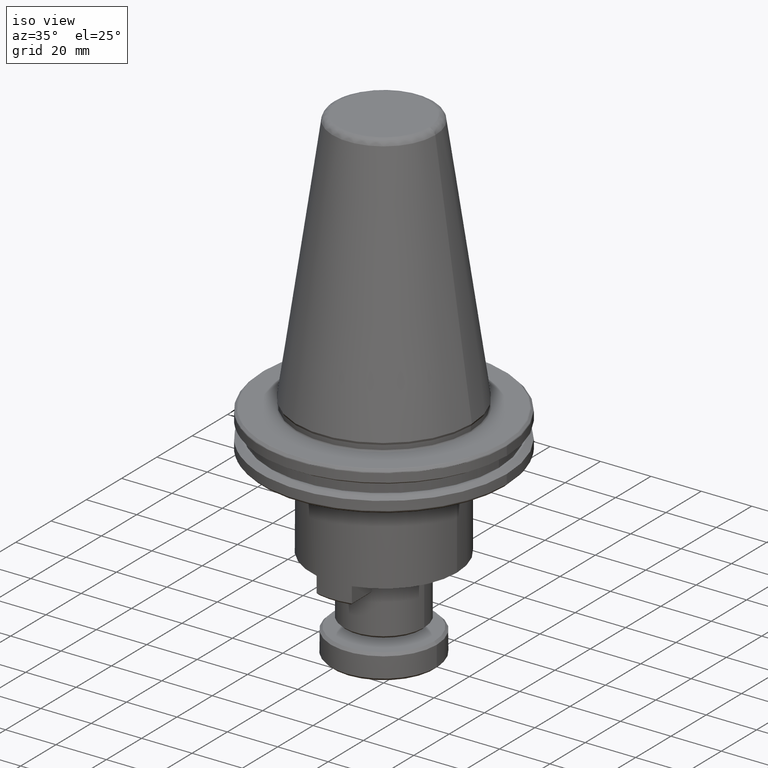
[diagram: clean part render]
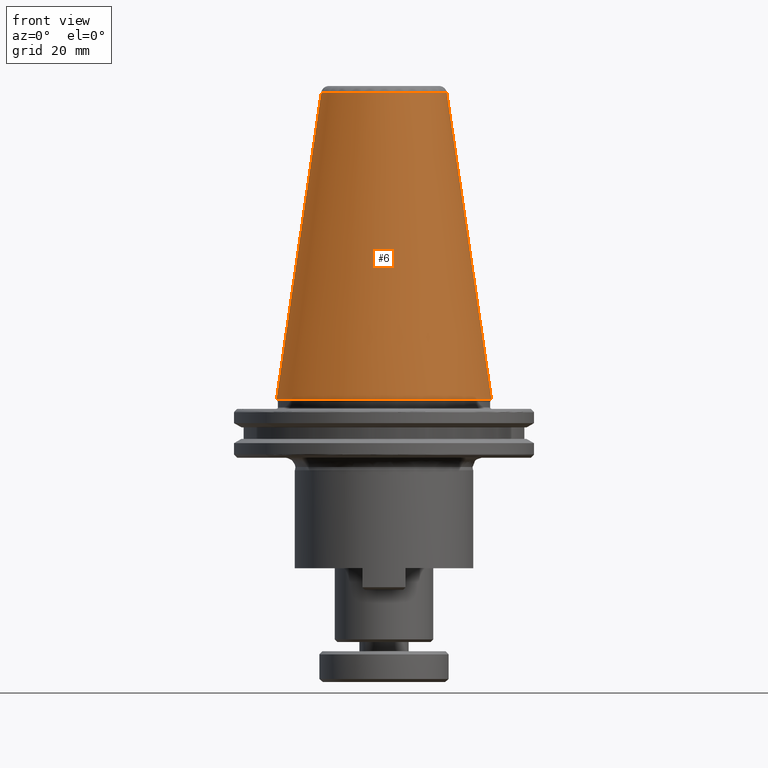
[diagram: tour spotlight — one face highlighted and labeled with its STEP entity id]
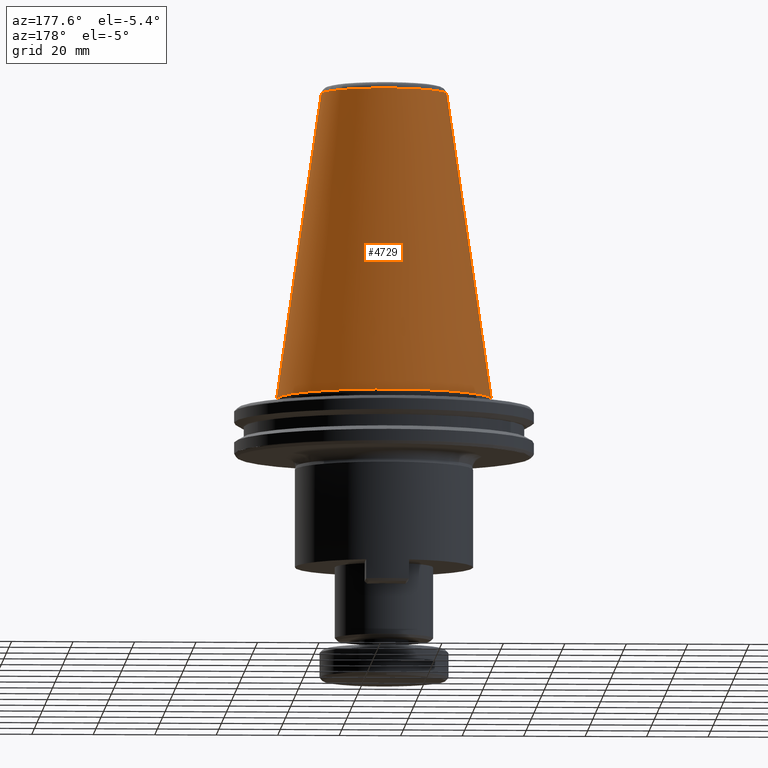
[diagram: tour spotlight — one face highlighted and labeled with its STEP entity id]
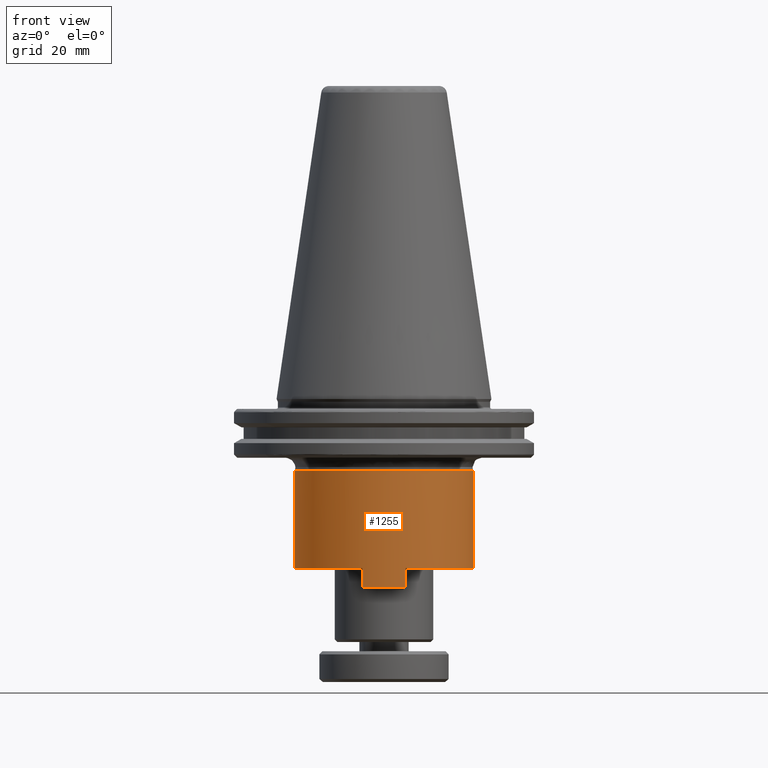
[diagram: tour spotlight — one face highlighted and labeled with its STEP entity id]
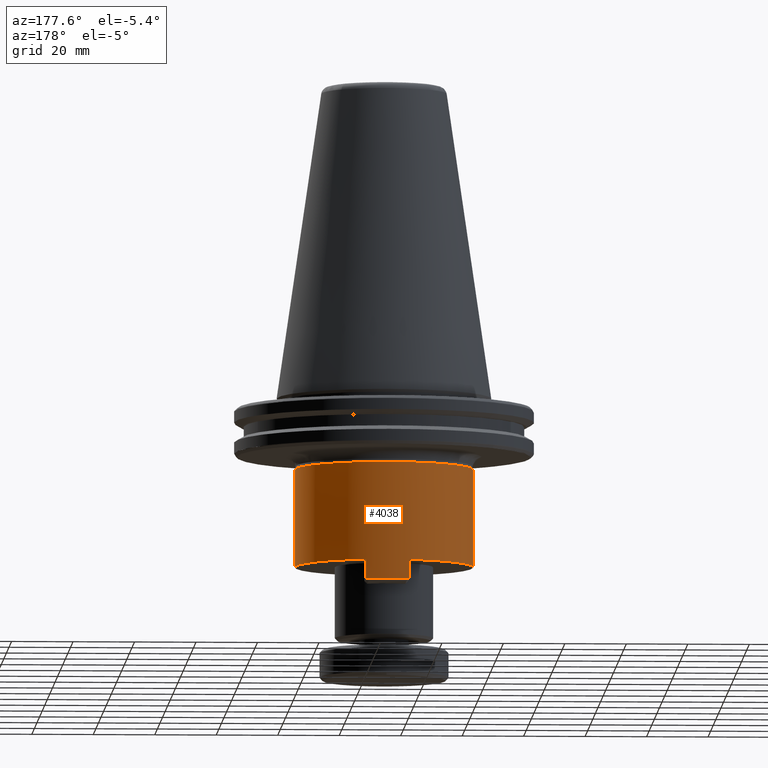
[diagram: tour spotlight — one face highlighted and labeled with its STEP entity id]
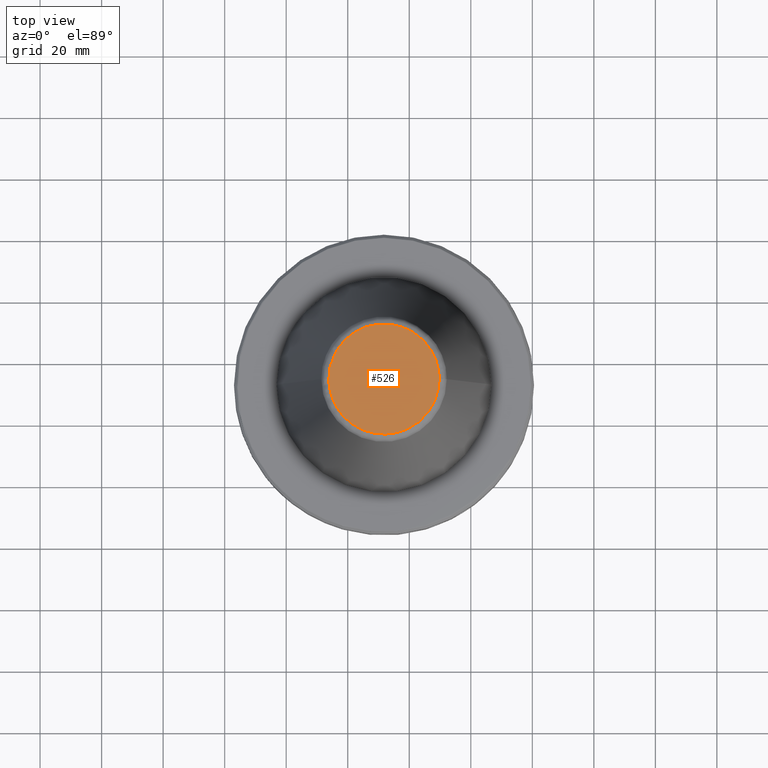
[diagram: tour spotlight — one face highlighted and labeled with its STEP entity id]
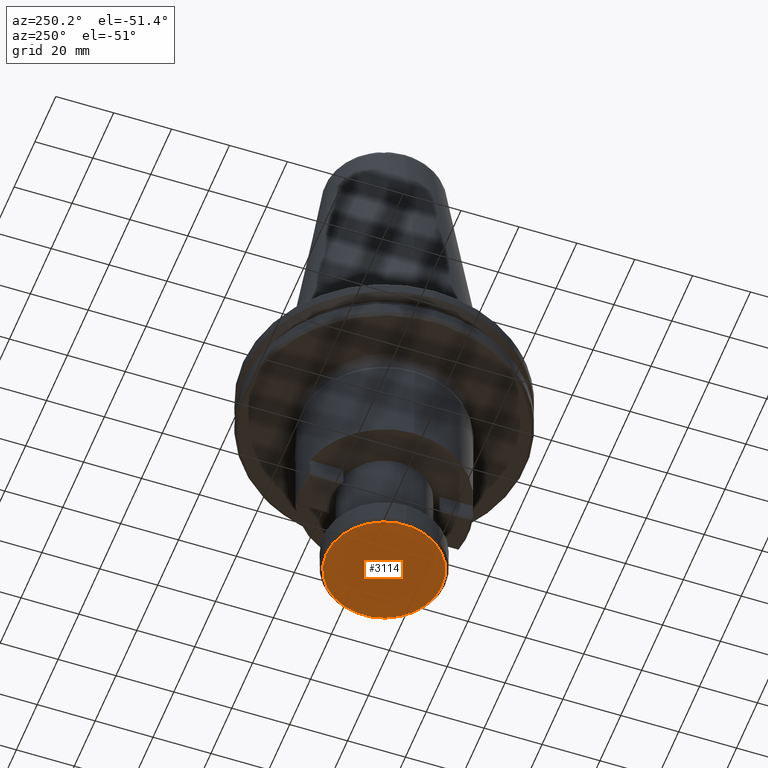
[diagram: tour spotlight — one face highlighted and labeled with its STEP entity id]
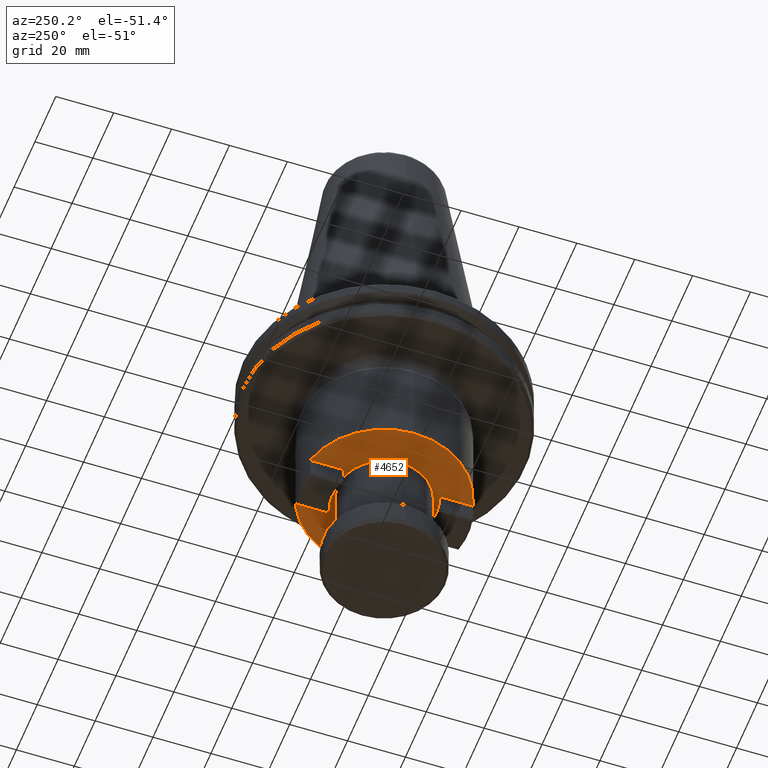
[diagram: tour spotlight — one face highlighted and labeled with its STEP entity id]
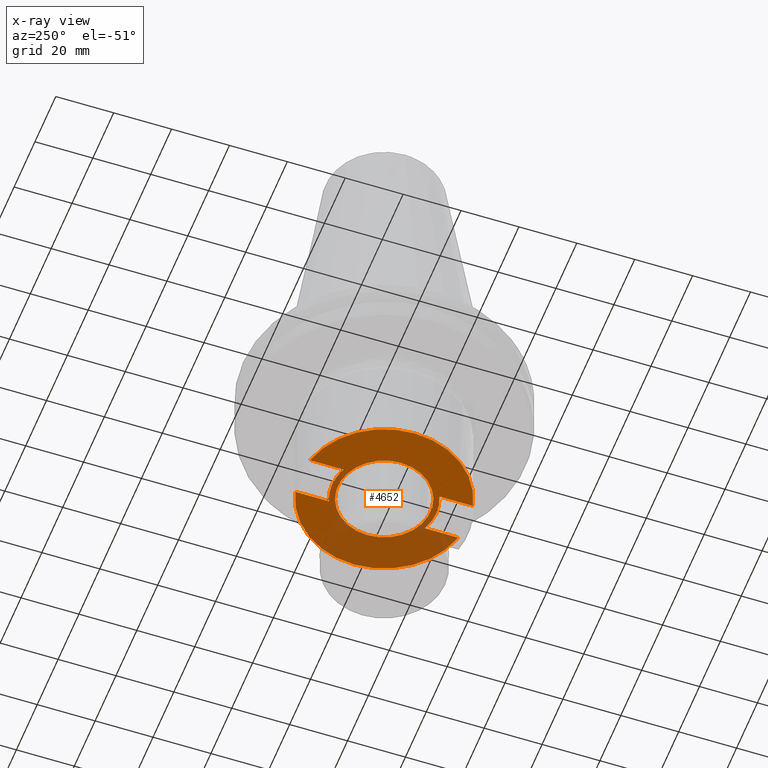
[diagram: x-ray of the same camera — body ghosted, this tour face saturated]
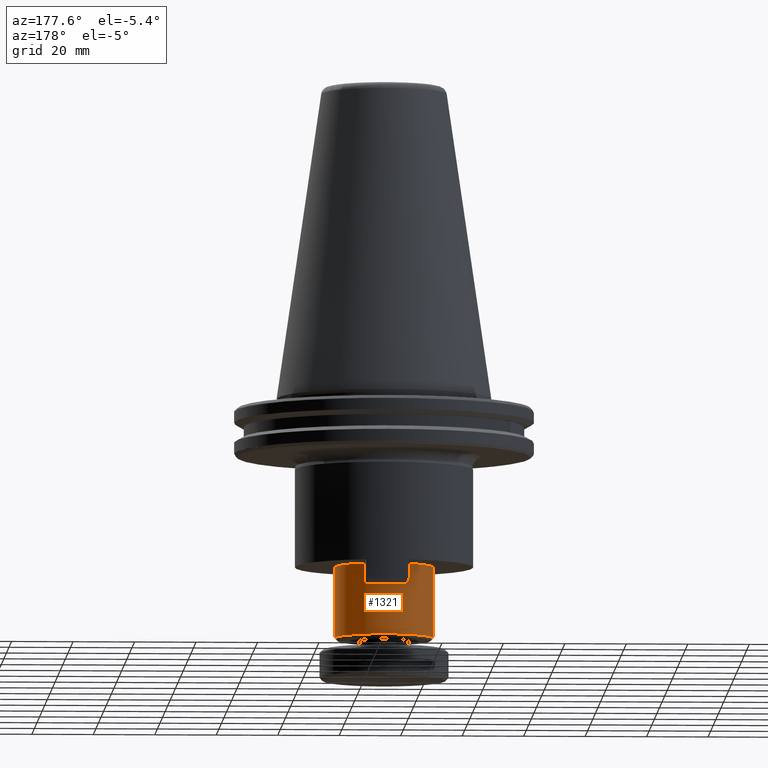
[diagram: tour spotlight — one face highlighted and labeled with its STEP entity id]
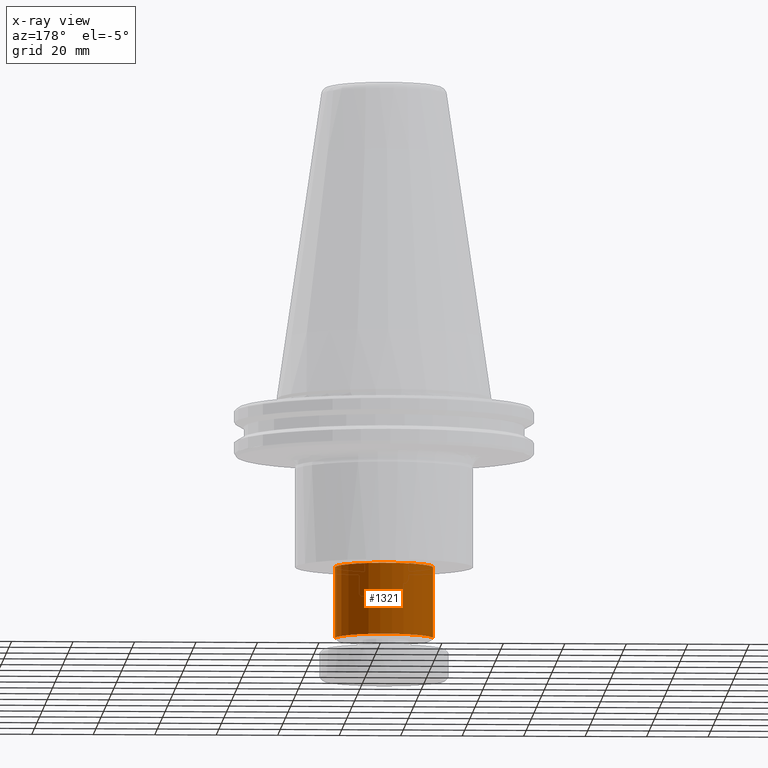
[diagram: x-ray of the same camera — body ghosted, this tour face saturated]
A machine part: a face-by-face anatomy tour. The part has 121 B-rep faces; the first image is the clean iso view, then the 8 largest visible faces are spotlighted one at a time (largest first), each with its STEP entity span.

Face 1 — front view, entity #6. In plain terms, the highlighted conical surface has half-angle 8.297 deg.
Definition (entity closure, byte-faithful):
#6 = ADVANCED_FACE ( 'NONE', ( #4749 ), #3324, .T. ) ;
#170 = ORIENTED_EDGE ( 'NONE', *, *, #2743, .T. ) ;
#605 = CARTESIAN_POINT ( 'NONE',  ( 91.78900745422478700, 111.8872747687010000, 197.6102733462804200 ) ) ;
#653 = EDGE_CURVE ( 'NONE', #3438, #5009, #2154, .T. ) ;
#756 = ORIENTED_EDGE ( 'NONE', *, *, #653, .F. ) ;
#881 = CARTESIAN_POINT ( 'NONE',  ( 56.86400745422476900, 111.8872747687010000, 97.99950277828043000 ) ) ;
#1009 = DIRECTION ( 'NONE',  ( -1.000000000000000000, 0.0000000000000000000, 1.360681347180457300E-015 ) ) ;
#1331 = DIRECTION ( 'NONE',  ( -0.0000000000000000000, -0.0000000000000000000, 1.000000000000000000 ) ) ;
#1469 = DIRECTION ( 'NONE',  ( -1.000000000000000000, 0.0000000000000000000, 0.0000000000000000000 ) ) ;
#1506 = VERTEX_POINT ( 'NONE', #2217 ) ;
#1760 = AXIS2_PLACEMENT_3D ( 'NONE', #3656, #1331, #4036 ) ;
#2085 = VECTOR ( 'NONE', #2488, 1000.000000000000000 ) ;
#2154 = LINE ( 'NONE', #4797, #2085 ) ;
#2217 = CARTESIAN_POINT ( 'NONE',  ( 71.39071532422480000, 111.8872747687010000, 197.6102733462803900 ) ) ;
#2420 = CARTESIAN_POINT ( 'NONE',  ( 112.1872995842247900, 111.8872747681780300, 197.6102733462803900 ) ) ;
#2455 = ORIENTED_EDGE ( 'NONE', *, *, #3181, .T. ) ;
#2488 = DIRECTION ( 'NONE',  ( 0.1443082272649516300, 1.767266086106518200E-017, -0.9895327864925179700 ) ) ;
#2743 = EDGE_CURVE ( 'NONE', #1506, #3928, #4222, .T. ) ;
#2776 = CIRCLE ( 'NONE', #3550, 20.39829212999999400 ) ;
#2949 = CARTESIAN_POINT ( 'NONE',  ( 91.78900745422478700, 111.8872747687010000, 97.99950277828041600 ) ) ;
#2964 = AXIS2_PLACEMENT_3D ( 'NONE', #2949, #3158, #1469 ) ;
#3158 = DIRECTION ( 'NONE',  ( 0.0000000000000000000, 0.0000000000000000000, -1.000000000000000000 ) ) ;
#3181 = EDGE_CURVE ( 'NONE', #3928, #5009, #3890, .T. ) ;
#3324 = CONICAL_SURFACE ( 'NONE', #2964, 34.92500000000000400, 0.1448138465450387600 ) ;
#3325 = DIRECTION ( 'NONE',  ( 0.0000000000000000000, 0.0000000000000000000, -1.000000000000000000 ) ) ;
#3438 = VERTEX_POINT ( 'NONE', #2420 ) ;
#3550 = AXIS2_PLACEMENT_3D ( 'NONE', #605, #3325, #1009 ) ;
#3656 = CARTESIAN_POINT ( 'NONE',  ( 91.78900745422478700, 111.8872747687010000, 97.99950277828043000 ) ) ;
#3679 = EDGE_LOOP ( 'NONE', ( #756, #4479, #170, #2455 ) ) ;
#3749 = DIRECTION ( 'NONE',  ( -0.1443082272649516300, 0.0000000000000000000, -0.9895327864925179700 ) ) ;
#3890 = CIRCLE ( 'NONE', #1760, 34.92500000000000400 ) ;
#3928 = VERTEX_POINT ( 'NONE', #881 ) ;
#4036 = DIRECTION ( 'NONE',  ( -1.000000000000000000, 0.0000000000000000000, -3.973597081693473100E-016 ) ) ;
#4126 = CARTESIAN_POINT ( 'NONE',  ( 56.86400745422478300, 111.8872747687010000, 97.99950277828041600 ) ) ;
#4222 = LINE ( 'NONE', #4126, #4281 ) ;
#4281 = VECTOR ( 'NONE', #3749, 1000.000000000000000 ) ;
#4388 = EDGE_CURVE ( 'NONE', #3438, #1506, #2776, .T. ) ;
#4479 = ORIENTED_EDGE ( 'NONE', *, *, #4388, .T. ) ;
#4749 = FACE_OUTER_BOUND ( 'NONE', #3679, .T. ) ;
#4797 = CARTESIAN_POINT ( 'NONE',  ( 126.7140074542247800, 111.8872747687010000, 97.99950277828041600 ) ) ;
#4864 = CARTESIAN_POINT ( 'NONE',  ( 126.7140074542247800, 111.8872747687010000, 97.99950277828043000 ) ) ;
#5009 = VERTEX_POINT ( 'NONE', #4864 ) ;

Face 2 — auxiliary view, entity #4729. In plain terms, the highlighted conical surface has half-angle 8.297 deg.
Definition (entity closure, byte-faithful):
#43 = DIRECTION ( 'NONE',  ( -1.000000000000000000, 0.0000000000000000000, 1.360681347180457300E-015 ) ) ;
#55 = DIRECTION ( 'NONE',  ( -1.000000000000000000, 0.0000000000000000000, 1.360681347180457300E-015 ) ) ;
#172 = DIRECTION ( 'NONE',  ( -1.000000000000000000, 0.0000000000000000000, 0.0000000000000000000 ) ) ;
#184 = ORIENTED_EDGE ( 'NONE', *, *, #4870, .T. ) ;
#292 = EDGE_CURVE ( 'NONE', #5009, #3928, #3067, .T. ) ;
#430 = VERTEX_POINT ( 'NONE', #3370 ) ;
#532 = VERTEX_POINT ( 'NONE', #3617 ) ;
#653 = EDGE_CURVE ( 'NONE', #3438, #5009, #2154, .T. ) ;
#658 = EDGE_LOOP ( 'NONE', ( #4537, #1863, #4433, #2032, #2551, #184 ) ) ;
#744 = EDGE_CURVE ( 'NONE', #532, #3438, #2031, .T. ) ;
#844 = DIRECTION ( 'NONE',  ( 0.0000000000000000000, 0.0000000000000000000, -1.000000000000000000 ) ) ;
#872 = CARTESIAN_POINT ( 'NONE',  ( 91.78900745422478700, 111.8872747687010000, 97.99950277828041600 ) ) ;
#881 = CARTESIAN_POINT ( 'NONE',  ( 56.86400745422476900, 111.8872747687010000, 97.99950277828043000 ) ) ;
#909 = EDGE_CURVE ( 'NONE', #1506, #430, #1718, .T. ) ;
#967 = AXIS2_PLACEMENT_3D ( 'NONE', #4796, #2487, #172 ) ;
#1016 = CARTESIAN_POINT ( 'NONE',  ( 91.78900745422478700, 111.8872747687010000, 197.6102733462804200 ) ) ;
#1506 = VERTEX_POINT ( 'NONE', #2217 ) ;
#1718 = CIRCLE ( 'NONE', #1952, 20.39829212999999400 ) ;
#1863 = ORIENTED_EDGE ( 'NONE', *, *, #653, .T. ) ;
#1952 = AXIS2_PLACEMENT_3D ( 'NONE', #1016, #844, #43 ) ;
#2010 = DIRECTION ( 'NONE',  ( -1.000000000000000000, 0.0000000000000000000, 0.0000000000000000000 ) ) ;
#2031 = CIRCLE ( 'NONE', #3620, 20.39829212999999400 ) ;
#2032 = ORIENTED_EDGE ( 'NONE', *, *, #2743, .F. ) ;
#2085 = VECTOR ( 'NONE', #2488, 1000.000000000000000 ) ;
#2154 = LINE ( 'NONE', #4797, #2085 ) ;
#2217 = CARTESIAN_POINT ( 'NONE',  ( 71.39071532422480000, 111.8872747687010000, 197.6102733462803900 ) ) ;
#2256 = DIRECTION ( 'NONE',  ( 0.0000000000000000000, 0.0000000000000000000, -1.000000000000000000 ) ) ;
#2412 = CIRCLE ( 'NONE', #967, 20.39829213098344600 ) ;
#2418 = CONICAL_SURFACE ( 'NONE', #4464, 34.92500000000000400, 0.1448138465450387600 ) ;
#2420 = CARTESIAN_POINT ( 'NONE',  ( 112.1872995842247900, 111.8872747681780300, 197.6102733462803900 ) ) ;
#2475 = FACE_OUTER_BOUND ( 'NONE', #658, .T. ) ;
#2477 = CARTESIAN_POINT ( 'NONE',  ( 91.78900745422478700, 111.8872747687010000, 197.6102733462804200 ) ) ;
#2487 = DIRECTION ( 'NONE',  ( -0.0000000000000000000, -0.0000000000000000000, -1.000000000000000000 ) ) ;
#2488 = DIRECTION ( 'NONE',  ( 0.1443082272649516300, 1.767266086106518200E-017, -0.9895327864925179700 ) ) ;
#2551 = ORIENTED_EDGE ( 'NONE', *, *, #909, .T. ) ;
#2743 = EDGE_CURVE ( 'NONE', #1506, #3928, #4222, .T. ) ;
#3067 = CIRCLE ( 'NONE', #3142, 34.92500000000000400 ) ;
#3142 = AXIS2_PLACEMENT_3D ( 'NONE', #4340, #4361, #3994 ) ;
#3370 = CARTESIAN_POINT ( 'NONE',  ( 77.36523676378220700, 126.3110454591436000, 197.6102733464237800 ) ) ;
#3438 = VERTEX_POINT ( 'NONE', #2420 ) ;
#3617 = CARTESIAN_POINT ( 'NONE',  ( 106.2127781446673400, 126.3110454591436300, 197.6102733464237800 ) ) ;
#3620 = AXIS2_PLACEMENT_3D ( 'NONE', #2477, #2256, #55 ) ;
#3749 = DIRECTION ( 'NONE',  ( -0.1443082272649516300, 0.0000000000000000000, -0.9895327864925179700 ) ) ;
#3928 = VERTEX_POINT ( 'NONE', #881 ) ;
#3994 = DIRECTION ( 'NONE',  ( -1.000000000000000000, 0.0000000000000000000, -3.973597081693473100E-016 ) ) ;
#4126 = CARTESIAN_POINT ( 'NONE',  ( 56.86400745422478300, 111.8872747687010000, 97.99950277828041600 ) ) ;
#4222 = LINE ( 'NONE', #4126, #4281 ) ;
#4281 = VECTOR ( 'NONE', #3749, 1000.000000000000000 ) ;
#4340 = CARTESIAN_POINT ( 'NONE',  ( 91.78900745422478700, 111.8872747687010000, 97.99950277828043000 ) ) ;
#4361 = DIRECTION ( 'NONE',  ( -0.0000000000000000000, -0.0000000000000000000, 1.000000000000000000 ) ) ;
#4433 = ORIENTED_EDGE ( 'NONE', *, *, #292, .T. ) ;
#4464 = AXIS2_PLACEMENT_3D ( 'NONE', #872, #4711, #2010 ) ;
#4537 = ORIENTED_EDGE ( 'NONE', *, *, #744, .T. ) ;
#4711 = DIRECTION ( 'NONE',  ( 0.0000000000000000000, 0.0000000000000000000, -1.000000000000000000 ) ) ;
#4729 = ADVANCED_FACE ( 'NONE', ( #2475 ), #2418, .T. ) ;
#4796 = CARTESIAN_POINT ( 'NONE',  ( 91.78900745422478700, 111.8872747687010000, 197.6102733464237800 ) ) ;
#4797 = CARTESIAN_POINT ( 'NONE',  ( 126.7140074542247800, 111.8872747687010000, 97.99950277828041600 ) ) ;
#4864 = CARTESIAN_POINT ( 'NONE',  ( 126.7140074542247800, 111.8872747687010000, 97.99950277828043000 ) ) ;
#4870 = EDGE_CURVE ( 'NONE', #430, #532, #2412, .T. ) ;
#5009 = VERTEX_POINT ( 'NONE', #4864 ) ;

Face 3 — front view, entity #1255. In plain terms, the highlighted cylindrical surface (partial cylindrical patch) has radius 29 mm, axis along (-0, 0, 1).
Definition (entity closure, byte-faithful):
#11 = VERTEX_POINT ( 'NONE', #2801 ) ;
#143 = EDGE_CURVE ( 'NONE', #2297, #4861, #3076, .T. ) ;
#197 = AXIS2_PLACEMENT_3D ( 'NONE', #2906, #1621, #2165 ) ;
#335 = CARTESIAN_POINT ( 'NONE',  ( 120.7890074542248200, 111.8872747687010000, 42.99950278251525000 ) ) ;
#364 = DIRECTION ( 'NONE',  ( -1.000000000000000000, 0.0000000000000000000, 0.0000000000000000000 ) ) ;
#412 = EDGE_CURVE ( 'NONE', #4678, #1278, #2751, .T. ) ;
#467 = CARTESIAN_POINT ( 'NONE',  ( 62.78900745420198600, 111.8872747687010000, 74.82246981624543000 ) ) ;
#524 = ORIENTED_EDGE ( 'NONE', *, *, #3073, .T. ) ;
#575 = EDGE_CURVE ( 'NONE', #4223, #2291, #2335, .T. ) ;
#698 = CARTESIAN_POINT ( 'NONE',  ( 98.78900746170596400, 83.74478021162123300, 36.79950277828039900 ) ) ;
#894 = DIRECTION ( 'NONE',  ( 0.0000000000000000000, 1.000000000000000000, 0.0000000000000000000 ) ) ;
#960 = CYLINDRICAL_SURFACE ( 'NONE', #197, 28.99999999999999600 ) ;
#1059 = AXIS2_PLACEMENT_3D ( 'NONE', #3875, #2685, #364 ) ;
#1072 = FACE_OUTER_BOUND ( 'NONE', #4912, .T. ) ;
#1112 = DIRECTION ( 'NONE',  ( -2.990902544787598700E-017, 0.0000000000000000000, 1.000000000000000000 ) ) ;
#1141 = CARTESIAN_POINT ( 'NONE',  ( 120.7890074542475800, 111.8872747687010000, 74.82246981624543000 ) ) ;
#1162 = EDGE_CURVE ( 'NONE', #11, #4861, #1312, .T. ) ;
#1220 = AXIS2_PLACEMENT_3D ( 'NONE', #1793, #2584, #2878 ) ;
#1255 = ADVANCED_FACE ( 'NONE', ( #1072 ), #960, .T. ) ;
#1278 = VERTEX_POINT ( 'NONE', #2808 ) ;
#1312 = LINE ( 'NONE', #698, #1319 ) ;
#1319 = VECTOR ( 'NONE', #1112, 1000.000000000000000 ) ;
#1349 = DIRECTION ( 'NONE',  ( -0.0000000000000000000, 5.981805089540974400E-017, -1.000000000000000000 ) ) ;
#1621 = DIRECTION ( 'NONE',  ( -1.196361017915039500E-016, 0.0000000000000000000, 1.000000000000000000 ) ) ;
#1626 = AXIS2_PLACEMENT_3D ( 'NONE', #3097, #1349, #894 ) ;
#1793 = CARTESIAN_POINT ( 'NONE',  ( 91.78900745422478700, 111.8872747687010000, 42.99950278251525000 ) ) ;
#2019 = EDGE_CURVE ( 'NONE', #1278, #2291, #4773, .T. ) ;
#2027 = CARTESIAN_POINT ( 'NONE',  ( 91.78900745422478700, 111.8872747687010000, 36.79950277828039900 ) ) ;
#2121 = ORIENTED_EDGE ( 'NONE', *, *, #412, .F. ) ;
#2165 = DIRECTION ( 'NONE',  ( 1.000000000000000000, 0.0000000000000000000, 2.392722035830079000E-016 ) ) ;
#2267 = CARTESIAN_POINT ( 'NONE',  ( 84.78900745625632900, 83.74478020925509700, 36.79950277828039900 ) ) ;
#2290 = VECTOR ( 'NONE', #2512, 1000.000000000000000 ) ;
#2291 = VERTEX_POINT ( 'NONE', #467 ) ;
#2297 = VERTEX_POINT ( 'NONE', #335 ) ;
#2335 = CIRCLE ( 'NONE', #1626, 29.00000000016592200 ) ;
#2346 = LINE ( 'NONE', #4423, #2290 ) ;
#2411 = DIRECTION ( 'NONE',  ( 1.000000000000000000, 0.0000000000000000000, 0.0000000000000000000 ) ) ;
#2512 = DIRECTION ( 'NONE',  ( 2.990902544787598700E-017, -0.0000000000000000000, -1.000000000000000000 ) ) ;
#2584 = DIRECTION ( 'NONE',  ( -0.0000000000000000000, -0.0000000000000000000, -1.000000000000000000 ) ) ;
#2685 = DIRECTION ( 'NONE',  ( -0.0000000000000000000, -0.0000000000000000000, -1.000000000000000000 ) ) ;
#2692 = DIRECTION ( 'NONE',  ( -1.196361017915039500E-016, 0.0000000000000000000, 1.000000000000000000 ) ) ;
#2706 = VECTOR ( 'NONE', #3851, 1000.000000000000000 ) ;
#2726 = ORIENTED_EDGE ( 'NONE', *, *, #1162, .T. ) ;
#2748 = CARTESIAN_POINT ( 'NONE',  ( 62.78900745422478700, 111.8872747687010000, 57.99950277828039400 ) ) ;
#2751 = CIRCLE ( 'NONE', #1220, 29.00000000000003900 ) ;
#2769 = LINE ( 'NONE', #3454, #2706 ) ;
#2801 = CARTESIAN_POINT ( 'NONE',  ( 98.78900745796536900, 83.74478021069083400, 36.79950277828039900 ) ) ;
#2808 = CARTESIAN_POINT ( 'NONE',  ( 62.78900745422476600, 111.8872747687010000, 42.99950278251525000 ) ) ;
#2878 = DIRECTION ( 'NONE',  ( -1.000000000000000000, 0.0000000000000000000, 0.0000000000000000000 ) ) ;
#2906 = CARTESIAN_POINT ( 'NONE',  ( 91.78900745422478700, 111.8872747687010000, 57.99950277828040200 ) ) ;
#3073 = EDGE_CURVE ( 'NONE', #4492, #11, #4000, .T. ) ;
#3076 = CIRCLE ( 'NONE', #1059, 29.00000000000003900 ) ;
#3097 = CARTESIAN_POINT ( 'NONE',  ( 91.78900745422478700, 111.8872747687010000, 74.82246981584906100 ) ) ;
#3272 = ORIENTED_EDGE ( 'NONE', *, *, #4979, .T. ) ;
#3454 = CARTESIAN_POINT ( 'NONE',  ( 120.7890074542247900, 111.8872747687010000, 57.99950277828040900 ) ) ;
#3659 = ORIENTED_EDGE ( 'NONE', *, *, #575, .T. ) ;
#3851 = DIRECTION ( 'NONE',  ( -1.196361017915039500E-016, 0.0000000000000000000, 1.000000000000000000 ) ) ;
#3875 = CARTESIAN_POINT ( 'NONE',  ( 91.78900745422478700, 111.8872747687010000, 42.99950278251525000 ) ) ;
#4000 = CIRCLE ( 'NONE', #4453, 28.99999999999999600 ) ;
#4026 = CARTESIAN_POINT ( 'NONE',  ( 98.78900745422481600, 83.74478020976039300, 42.99950278251525000 ) ) ;
#4067 = ORIENTED_EDGE ( 'NONE', *, *, #143, .F. ) ;
#4184 = ORIENTED_EDGE ( 'NONE', *, *, #2019, .F. ) ;
#4223 = VERTEX_POINT ( 'NONE', #1141 ) ;
#4423 = CARTESIAN_POINT ( 'NONE',  ( 84.78900745828785500, 83.74478020874980200, 36.79950277828039900 ) ) ;
#4453 = AXIS2_PLACEMENT_3D ( 'NONE', #2027, #4725, #2411 ) ;
#4492 = VERTEX_POINT ( 'NONE', #2267 ) ;
#4505 = EDGE_CURVE ( 'NONE', #2297, #4223, #2769, .T. ) ;
#4675 = CARTESIAN_POINT ( 'NONE',  ( 84.78900745828785500, 83.74478020874980200, 42.99950278251525000 ) ) ;
#4678 = VERTEX_POINT ( 'NONE', #4675 ) ;
#4725 = DIRECTION ( 'NONE',  ( -2.990902544787598700E-017, 0.0000000000000000000, 1.000000000000000000 ) ) ;
#4761 = VECTOR ( 'NONE', #2692, 1000.000000000000000 ) ;
#4773 = LINE ( 'NONE', #2748, #4761 ) ;
#4861 = VERTEX_POINT ( 'NONE', #4026 ) ;
#4912 = EDGE_LOOP ( 'NONE', ( #4184, #2121, #3272, #524, #2726, #4067, #4942, #3659 ) ) ;
#4942 = ORIENTED_EDGE ( 'NONE', *, *, #4505, .T. ) ;
#4979 = EDGE_CURVE ( 'NONE', #4678, #4492, #2346, .T. ) ;

Face 4 — auxiliary view, entity #4038. In plain terms, the highlighted cylindrical surface (partial cylindrical patch) has radius 29 mm, axis along (-0, 0, 1).
Definition (entity closure, byte-faithful):
#29 = CARTESIAN_POINT ( 'NONE',  ( 91.78900745422478700, 111.8872747687010000, 74.82246981637753400 ) ) ;
#49 = CARTESIAN_POINT ( 'NONE',  ( 84.78900745458958000, 140.0297693271697600, 36.79950277773448900 ) ) ;
#121 = EDGE_CURVE ( 'NONE', #4511, #2680, #3144, .T. ) ;
#155 = EDGE_CURVE ( 'NONE', #3696, #4739, #3062, .T. ) ;
#176 = ORIENTED_EDGE ( 'NONE', *, *, #1968, .T. ) ;
#187 = ORIENTED_EDGE ( 'NONE', *, *, #3884, .F. ) ;
#335 = CARTESIAN_POINT ( 'NONE',  ( 120.7890074542248200, 111.8872747687010000, 42.99950278251525000 ) ) ;
#351 = ORIENTED_EDGE ( 'NONE', *, *, #2019, .T. ) ;
#467 = CARTESIAN_POINT ( 'NONE',  ( 62.78900745420198600, 111.8872747687010000, 74.82246981624543000 ) ) ;
#477 = CARTESIAN_POINT ( 'NONE',  ( 98.78900745507931400, 140.0297693272164800, 36.79950277833217600 ) ) ;
#519 = LINE ( 'NONE', #2204, #577 ) ;
#577 = VECTOR ( 'NONE', #1852, 1000.000000000000000 ) ;
#621 = CARTESIAN_POINT ( 'NONE',  ( 91.78900745422478700, 111.8872747687010000, 57.99950277828040200 ) ) ;
#937 = CARTESIAN_POINT ( 'NONE',  ( 98.78900745593385600, 140.0297693272164800, 42.99950278251525000 ) ) ;
#948 = CARTESIAN_POINT ( 'NONE',  ( 91.78900745422478700, 111.8872747687010000, 74.82246981637754900 ) ) ;
#965 = CIRCLE ( 'NONE', #4434, 29.00000000000003900 ) ;
#1051 = AXIS2_PLACEMENT_3D ( 'NONE', #621, #4860, #3741 ) ;
#1141 = CARTESIAN_POINT ( 'NONE',  ( 120.7890074542475800, 111.8872747687010000, 74.82246981624543000 ) ) ;
#1250 = VERTEX_POINT ( 'NONE', #2887 ) ;
#1263 = EDGE_CURVE ( 'NONE', #3696, #2297, #965, .T. ) ;
#1266 = CARTESIAN_POINT ( 'NONE',  ( 91.78900745422478700, 111.8872747687010000, 42.99950278251525000 ) ) ;
#1278 = VERTEX_POINT ( 'NONE', #2808 ) ;
#1364 = CARTESIAN_POINT ( 'NONE',  ( 91.78900745422478700, 111.8872747687010000, 36.79950277828039900 ) ) ;
#1512 = EDGE_CURVE ( 'NONE', #2971, #1250, #519, .T. ) ;
#1605 = DIRECTION ( 'NONE',  ( -1.000000000000000000, 0.0000000000000000000, 0.0000000000000000000 ) ) ;
#1635 = DIRECTION ( 'NONE',  ( -1.000000000000000000, 0.0000000000000000000, 0.0000000000000000000 ) ) ;
#1667 = AXIS2_PLACEMENT_3D ( 'NONE', #948, #4782, #2704 ) ;
#1725 = CARTESIAN_POINT ( 'NONE',  ( 91.78900745422478700, 111.8872747687010000, 42.99950278251525000 ) ) ;
#1732 = DIRECTION ( 'NONE',  ( 1.000000000000000000, 0.0000000000000000000, 0.0000000000000000000 ) ) ;
#1750 = ORIENTED_EDGE ( 'NONE', *, *, #155, .T. ) ;
#1778 = DIRECTION ( 'NONE',  ( 2.990902544787598700E-017, -0.0000000000000000000, -1.000000000000000000 ) ) ;
#1852 = DIRECTION ( 'NONE',  ( -2.990902544787598700E-017, 0.0000000000000000000, 1.000000000000000000 ) ) ;
#1893 = CARTESIAN_POINT ( 'NONE',  ( 71.28291079984131800, 132.3933714230844900, 74.82246981637753400 ) ) ;
#1968 = EDGE_CURVE ( 'NONE', #2680, #4223, #4831, .T. ) ;
#2019 = EDGE_CURVE ( 'NONE', #1278, #2291, #4773, .T. ) ;
#2064 = DIRECTION ( 'NONE',  ( -0.0000000000000000000, -0.0000000000000000000, -1.000000000000000000 ) ) ;
#2143 = CARTESIAN_POINT ( 'NONE',  ( 112.2951041086082300, 132.3933714230844900, 74.82246981637753400 ) ) ;
#2151 = ORIENTED_EDGE ( 'NONE', *, *, #4916, .T. ) ;
#2204 = CARTESIAN_POINT ( 'NONE',  ( 84.78900745469081800, 140.0297693277574900, 36.79950277828039900 ) ) ;
#2291 = VERTEX_POINT ( 'NONE', #467 ) ;
#2297 = VERTEX_POINT ( 'NONE', #335 ) ;
#2343 = CIRCLE ( 'NONE', #3034, 28.99999999999999600 ) ;
#2375 = EDGE_CURVE ( 'NONE', #2291, #4511, #4507, .T. ) ;
#2467 = ORIENTED_EDGE ( 'NONE', *, *, #1512, .T. ) ;
#2680 = VERTEX_POINT ( 'NONE', #2143 ) ;
#2692 = DIRECTION ( 'NONE',  ( -1.196361017915039500E-016, 0.0000000000000000000, 1.000000000000000000 ) ) ;
#2704 = DIRECTION ( 'NONE',  ( -1.000000000000000000, 0.0000000000000000000, 0.0000000000000000000 ) ) ;
#2706 = VECTOR ( 'NONE', #3851, 1000.000000000000000 ) ;
#2748 = CARTESIAN_POINT ( 'NONE',  ( 62.78900745422478700, 111.8872747687010000, 57.99950277828039400 ) ) ;
#2769 = LINE ( 'NONE', #3454, #2706 ) ;
#2808 = CARTESIAN_POINT ( 'NONE',  ( 62.78900745422476600, 111.8872747687010000, 42.99950278251525000 ) ) ;
#2873 = DIRECTION ( 'NONE',  ( -0.0000000000000000000, -0.0000000000000000000, -1.000000000000000000 ) ) ;
#2887 = CARTESIAN_POINT ( 'NONE',  ( 84.78900745445780300, 140.0297693276995700, 42.99950278251525000 ) ) ;
#2971 = VERTEX_POINT ( 'NONE', #49 ) ;
#3016 = VECTOR ( 'NONE', #1778, 1000.000000000000000 ) ;
#3034 = AXIS2_PLACEMENT_3D ( 'NONE', #1364, #4071, #1732 ) ;
#3062 = LINE ( 'NONE', #3303, #3016 ) ;
#3069 = DIRECTION ( 'NONE',  ( -1.000000000000000000, 0.0000000000000000000, 0.0000000000000000000 ) ) ;
#3100 = CYLINDRICAL_SURFACE ( 'NONE', #1051, 28.99999999999999600 ) ;
#3144 = CIRCLE ( 'NONE', #4763, 28.99999999996265400 ) ;
#3166 = FACE_OUTER_BOUND ( 'NONE', #4241, .T. ) ;
#3294 = CIRCLE ( 'NONE', #4321, 29.00000000000003900 ) ;
#3303 = CARTESIAN_POINT ( 'NONE',  ( 98.78900745593385600, 140.0297693272164800, 36.79950277828039900 ) ) ;
#3454 = CARTESIAN_POINT ( 'NONE',  ( 120.7890074542247900, 111.8872747687010000, 57.99950277828040900 ) ) ;
#3513 = DIRECTION ( 'NONE',  ( -0.0000000000000000000, -0.0000000000000000000, -1.000000000000000000 ) ) ;
#3596 = ORIENTED_EDGE ( 'NONE', *, *, #1263, .F. ) ;
#3696 = VERTEX_POINT ( 'NONE', #937 ) ;
#3741 = DIRECTION ( 'NONE',  ( 1.000000000000000000, 0.0000000000000000000, 2.392722035830079000E-016 ) ) ;
#3851 = DIRECTION ( 'NONE',  ( -1.196361017915039500E-016, 0.0000000000000000000, 1.000000000000000000 ) ) ;
#3857 = ORIENTED_EDGE ( 'NONE', *, *, #2375, .T. ) ;
#3884 = EDGE_CURVE ( 'NONE', #1278, #1250, #3294, .T. ) ;
#3897 = ORIENTED_EDGE ( 'NONE', *, *, #121, .T. ) ;
#3926 = AXIS2_PLACEMENT_3D ( 'NONE', #4380, #2064, #4765 ) ;
#3977 = DIRECTION ( 'NONE',  ( -0.0000000000000000000, -0.0000000000000000000, -1.000000000000000000 ) ) ;
#4038 = ADVANCED_FACE ( 'NONE', ( #3166 ), #3100, .T. ) ;
#4071 = DIRECTION ( 'NONE',  ( -2.990902544787598700E-017, 0.0000000000000000000, 1.000000000000000000 ) ) ;
#4223 = VERTEX_POINT ( 'NONE', #1141 ) ;
#4241 = EDGE_LOOP ( 'NONE', ( #187, #351, #3857, #3897, #176, #5012, #3596, #1750, #2151, #2467 ) ) ;
#4321 = AXIS2_PLACEMENT_3D ( 'NONE', #1266, #3977, #1635 ) ;
#4380 = CARTESIAN_POINT ( 'NONE',  ( 91.78900745422478700, 111.8872747687010000, 74.82246981637754900 ) ) ;
#4434 = AXIS2_PLACEMENT_3D ( 'NONE', #1725, #2873, #1605 ) ;
#4505 = EDGE_CURVE ( 'NONE', #2297, #4223, #2769, .T. ) ;
#4507 = CIRCLE ( 'NONE', #3926, 28.99999999996262500 ) ;
#4511 = VERTEX_POINT ( 'NONE', #1893 ) ;
#4739 = VERTEX_POINT ( 'NONE', #477 ) ;
#4761 = VECTOR ( 'NONE', #2692, 1000.000000000000000 ) ;
#4763 = AXIS2_PLACEMENT_3D ( 'NONE', #29, #3513, #3069 ) ;
#4765 = DIRECTION ( 'NONE',  ( -1.000000000000000000, 0.0000000000000000000, 0.0000000000000000000 ) ) ;
#4773 = LINE ( 'NONE', #2748, #4761 ) ;
#4782 = DIRECTION ( 'NONE',  ( -0.0000000000000000000, -0.0000000000000000000, -1.000000000000000000 ) ) ;
#4831 = CIRCLE ( 'NONE', #1667, 28.99999999996262500 ) ;
#4860 = DIRECTION ( 'NONE',  ( -1.196361017915039500E-016, 0.0000000000000000000, 1.000000000000000000 ) ) ;
#4916 = EDGE_CURVE ( 'NONE', #4739, #2971, #2343, .T. ) ;
#5012 = ORIENTED_EDGE ( 'NONE', *, *, #4505, .F. ) ;

Face 5 — top view, entity #526. In plain terms, the highlighted planar face has unit normal (0, 0, 1).
Definition (entity closure, byte-faithful):
#83 = AXIS2_PLACEMENT_3D ( 'NONE', #1678, #1964, #3539 ) ;
#85 =( BOUNDED_CURVE ( )  B_SPLINE_CURVE ( 3, ( #2917, #3317, #610, #3333 ),
 .UNSPECIFIED., .F., .T. ) 
 B_SPLINE_CURVE_WITH_KNOTS ( ( 4, 4 ),
 ( 0.0000000000000000000, 1.000000000000000000 ),
 .UNSPECIFIED. ) 
 CURVE ( )  GEOMETRIC_REPRESENTATION_ITEM ( )  RATIONAL_B_SPLINE_CURVE ( ( 0.9606698262249131500, 0.3202232754083040300, 0.3202232754083040300, 0.9606698262249131500 ) ) 
 REPRESENTATION_ITEM ( '' )  );
#442 =( BOUNDED_CURVE ( )  B_SPLINE_CURVE ( 3, ( #1192, #807, #1571, #4269 ),
 .UNSPECIFIED., .F., .T. ) 
 B_SPLINE_CURVE_WITH_KNOTS ( ( 4, 4 ),
 ( 0.7071067808758516600, 1.000000000000000000 ),
 .UNSPECIFIED. ) 
 CURVE ( )  GEOMETRIC_REPRESENTATION_ITEM ( )  RATIONAL_B_SPLINE_CURVE ( ( 0.5627473549926835800, 0.6404465505352025000, 0.7730873742792793200, 0.9606698262249141500 ) ) 
 REPRESENTATION_ITEM ( '' )  );
#526 = ADVANCED_FACE ( 'NONE', ( #2385 ), #1295, .T. ) ;
#550 = VERTEX_POINT ( 'NONE', #1501 ) ;
#610 = CARTESIAN_POINT ( 'NONE',  ( 73.86454729743432800, 76.03835445612011800, 199.7495027782804000 ) ) ;
#620 = ORIENTED_EDGE ( 'NONE', *, *, #3083, .F. ) ;
#625 = CARTESIAN_POINT ( 'NONE',  ( 73.86454729743434200, 116.2364781029218500, 199.7495027782803400 ) ) ;
#733 = EDGE_CURVE ( 'NONE', #550, #3042, #4272, .T. ) ;
#807 = CARTESIAN_POINT ( 'NONE',  ( 108.1757920238408600, 120.8495048586600000, 199.7495027782804000 ) ) ;
#885 = CARTESIAN_POINT ( 'NONE',  ( 79.11442963065540800, 124.5618525922703400, 199.7495027777834800 ) ) ;
#1192 = CARTESIAN_POINT ( 'NONE',  ( 104.4635852777941500, 124.5618525922703600, 199.7495027777834800 ) ) ;
#1270 = CARTESIAN_POINT ( 'NONE',  ( 104.4635852777941500, 124.5618525922703700, 199.7495027777834800 ) ) ;
#1295 = PLANE ( 'NONE',  #83 ) ;
#1355 = CARTESIAN_POINT ( 'NONE',  ( 79.11442963065540800, 124.5618525922703400, 199.7495027777834800 ) ) ;
#1360 = CARTESIAN_POINT ( 'NONE',  ( 75.40222288455603900, 120.8495048585019400, 199.7495027782803400 ) ) ;
#1501 = CARTESIAN_POINT ( 'NONE',  ( 73.86454729758537500, 111.8872747687010000, 199.7495027782804000 ) ) ;
#1571 = CARTESIAN_POINT ( 'NONE',  ( 109.7134676110152600, 116.2364781029985700, 199.7495027782804000 ) ) ;
#1678 = CARTESIAN_POINT ( 'NONE',  ( 73.64945377222478800, 93.74768735770101100, 199.7495027782804000 ) ) ;
#1715 = CARTESIAN_POINT ( 'NONE',  ( 109.7134676108642000, 111.8872747687010000, 199.7495027782804000 ) ) ;
#1964 = DIRECTION ( 'NONE',  ( 0.0000000000000000000, 0.0000000000000000000, 1.000000000000000000 ) ) ;
#2040 = CARTESIAN_POINT ( 'NONE',  ( 91.78900745422478700, 111.8872747687010000, 199.7495027777834800 ) ) ;
#2385 = FACE_OUTER_BOUND ( 'NONE', #2791, .T. ) ;
#2428 = DIRECTION ( 'NONE',  ( -1.000000000000000000, 0.0000000000000000000, 0.0000000000000000000 ) ) ;
#2433 = VERTEX_POINT ( 'NONE', #1715 ) ;
#2791 = EDGE_LOOP ( 'NONE', ( #3605, #620, #4254, #4456 ) ) ;
#2917 = CARTESIAN_POINT ( 'NONE',  ( 109.7134676108642000, 111.8872747687010000, 199.7495027782804000 ) ) ;
#3042 = VERTEX_POINT ( 'NONE', #885 ) ;
#3064 = VERTEX_POINT ( 'NONE', #1270 ) ;
#3083 = EDGE_CURVE ( 'NONE', #3042, #3064, #3946, .T. ) ;
#3317 = CARTESIAN_POINT ( 'NONE',  ( 109.7134676110152300, 76.03835445612011800, 199.7495027782804000 ) ) ;
#3333 = CARTESIAN_POINT ( 'NONE',  ( 73.86454729758537500, 111.8872747687010000, 199.7495027782804000 ) ) ;
#3539 = DIRECTION ( 'NONE',  ( 1.000000000000000000, 0.0000000000000000000, -0.0000000000000000000 ) ) ;
#3605 = ORIENTED_EDGE ( 'NONE', *, *, #3861, .F. ) ;
#3859 = CARTESIAN_POINT ( 'NONE',  ( 73.86454729758537500, 111.8872747687010000, 199.7495027782804000 ) ) ;
#3861 = EDGE_CURVE ( 'NONE', #3064, #2433, #442, .T. ) ;
#3946 = CIRCLE ( 'NONE', #4988, 17.92455985544506800 ) ;
#4254 = ORIENTED_EDGE ( 'NONE', *, *, #733, .F. ) ;
#4269 = CARTESIAN_POINT ( 'NONE',  ( 109.7134676108642000, 111.8872747687010000, 199.7495027782804000 ) ) ;
#4272 =( BOUNDED_CURVE ( )  B_SPLINE_CURVE ( 3, ( #3859, #625, #1360, #1355 ),
 .UNSPECIFIED., .F., .F. ) 
 B_SPLINE_CURVE_WITH_KNOTS ( ( 4, 4 ),
 ( 0.0000000000000000000, 0.2928932191199923900 ),
 .UNSPECIFIED. ) 
 CURVE ( )  GEOMETRIC_REPRESENTATION_ITEM ( )  RATIONAL_B_SPLINE_CURVE ( ( 0.9606698262249141500, 0.7730873742819409600, 0.6404465505389666000, 0.5627473549959910400 ) ) 
 REPRESENTATION_ITEM ( '' )  );
#4456 = ORIENTED_EDGE ( 'NONE', *, *, #4989, .F. ) ;
#4744 = DIRECTION ( 'NONE',  ( -0.0000000000000000000, -0.0000000000000000000, -1.000000000000000000 ) ) ;
#4988 = AXIS2_PLACEMENT_3D ( 'NONE', #2040, #4744, #2428 ) ;
#4989 = EDGE_CURVE ( 'NONE', #2433, #550, #85, .T. ) ;

Face 6 — auxiliary view, entity #3114. In plain terms, the highlighted planar face has unit normal (0, -0, 1).
Definition (entity closure, byte-faithful):
#128 = PLANE ( 'NONE',  #1273 ) ;
#144 = ORIENTED_EDGE ( 'NONE', *, *, #1851, .F. ) ;
#230 = DIRECTION ( 'NONE',  ( 0.0000000000000000000, -3.304235192336775000E-016, 1.000000000000000000 ) ) ;
#370 = AXIS2_PLACEMENT_3D ( 'NONE', #4040, #4054, #2818 ) ;
#1273 = AXIS2_PLACEMENT_3D ( 'NONE', #3993, #1299, #4009 ) ;
#1299 = DIRECTION ( 'NONE',  ( 0.0000000000000000000, -0.0000000000000000000, 1.000000000000000000 ) ) ;
#1674 = VERTEX_POINT ( 'NONE', #4709 ) ;
#1851 = EDGE_CURVE ( 'NONE', #1674, #2451, #4897, .T. ) ;
#2345 = AXIS2_PLACEMENT_3D ( 'NONE', #2542, #230, #2943 ) ;
#2363 = EDGE_LOOP ( 'NONE', ( #3521, #144 ) ) ;
#2451 = VERTEX_POINT ( 'NONE', #4813 ) ;
#2542 = CARTESIAN_POINT ( 'NONE',  ( 91.78900745422478700, 111.8872747687010000, 5.999502778280444200 ) ) ;
#2818 = DIRECTION ( 'NONE',  ( 0.0000000000000000000, -1.000000000000000000, -3.469446951953613700E-016 ) ) ;
#2943 = DIRECTION ( 'NONE',  ( 0.0000000000000000000, -1.000000000000000000, -3.469446951953613700E-016 ) ) ;
#3114 = ADVANCED_FACE ( 'NONE', ( #3935 ), #128, .F. ) ;
#3521 = ORIENTED_EDGE ( 'NONE', *, *, #3524, .F. ) ;
#3524 = EDGE_CURVE ( 'NONE', #2451, #1674, #3641, .T. ) ;
#3641 = CIRCLE ( 'NONE', #2345, 20.00000000000000400 ) ;
#3935 = FACE_OUTER_BOUND ( 'NONE', #2363, .T. ) ;
#3993 = CARTESIAN_POINT ( 'NONE',  ( 91.78900745422478700, 111.8872747687010000, 5.999502778280444200 ) ) ;
#4009 = DIRECTION ( 'NONE',  ( 1.000000000000000000, 0.0000000000000000000, -0.0000000000000000000 ) ) ;
#4040 = CARTESIAN_POINT ( 'NONE',  ( 91.78900745422478700, 111.8872747687010000, 5.999502778280444200 ) ) ;
#4054 = DIRECTION ( 'NONE',  ( 0.0000000000000000000, -3.304235192336775000E-016, 1.000000000000000000 ) ) ;
#4709 = CARTESIAN_POINT ( 'NONE',  ( 91.78900745422478700, 131.8872747687009900, 5.999502778280450400 ) ) ;
#4813 = CARTESIAN_POINT ( 'NONE',  ( 91.78900745422478700, 91.88727476870099100, 5.999502778280437100 ) ) ;
#4897 = CIRCLE ( 'NONE', #370, 20.00000000000000400 ) ;

Face 7 — auxiliary view, entity #4652. An x-ray twin of the same camera follows (body ghosted, this face saturated) — the face is partly hidden behind the body. In plain terms, the highlighted planar face has unit normal (0, 0, 1).
Definition (entity closure, byte-faithful):
#14 = CARTESIAN_POINT ( 'NONE',  ( 91.78900745422478700, 111.8872747687010000, 42.99950278251525000 ) ) ;
#143 = EDGE_CURVE ( 'NONE', #2297, #4861, #3076, .T. ) ;
#190 = ORIENTED_EDGE ( 'NONE', *, *, #143, .T. ) ;
#235 = DIRECTION ( 'NONE',  ( -0.0000000000000000000, -0.0000000000000000000, 1.000000000000000000 ) ) ;
#256 = AXIS2_PLACEMENT_3D ( 'NONE', #2553, #235, #2950 ) ;
#305 = VERTEX_POINT ( 'NONE', #3182 ) ;
#335 = CARTESIAN_POINT ( 'NONE',  ( 120.7890074542248200, 111.8872747687010000, 42.99950278251525000 ) ) ;
#342 = CARTESIAN_POINT ( 'NONE',  ( 84.78900745422478700, 128.4703987207009800, 42.99950278251525000 ) ) ;
#364 = DIRECTION ( 'NONE',  ( -1.000000000000000000, 0.0000000000000000000, 0.0000000000000000000 ) ) ;
#387 = DIRECTION ( 'NONE',  ( -1.000000000000000000, 0.0000000000000000000, 0.0000000000000000000 ) ) ;
#410 = DIRECTION ( 'NONE',  ( 0.0000000000000000000, 1.000000000000000000, -0.0000000000000000000 ) ) ;
#412 = EDGE_CURVE ( 'NONE', #4678, #1278, #2751, .T. ) ;
#423 = PLANE ( 'NONE',  #2926 ) ;
#456 = AXIS2_PLACEMENT_3D ( 'NONE', #3702, #3603, #1396 ) ;
#472 = VERTEX_POINT ( 'NONE', #2424 ) ;
#574 = AXIS2_PLACEMENT_3D ( 'NONE', #14, #2709, #387 ) ;
#722 = EDGE_LOOP ( 'NONE', ( #2835, #1633, #1019, #2928, #190, #3499, #3177, #986, #4738, #4724 ) ) ;
#741 = DIRECTION ( 'NONE',  ( 0.0000000000000000000, 1.000000000000000000, 0.0000000000000000000 ) ) ;
#836 = EDGE_CURVE ( 'NONE', #4861, #305, #1966, .T. ) ;
#837 = DIRECTION ( 'NONE',  ( 0.0000000000000000000, 0.0000000000000000000, 1.000000000000000000 ) ) ;
#851 = EDGE_CURVE ( 'NONE', #3167, #3696, #1768, .T. ) ;
#937 = CARTESIAN_POINT ( 'NONE',  ( 98.78900745593385600, 140.0297693272164800, 42.99950278251525000 ) ) ;
#965 = CIRCLE ( 'NONE', #4434, 29.00000000000003900 ) ;
#986 = ORIENTED_EDGE ( 'NONE', *, *, #4645, .F. ) ;
#1010 = CIRCLE ( 'NONE', #456, 16.00000000000000000 ) ;
#1019 = ORIENTED_EDGE ( 'NONE', *, *, #851, .T. ) ;
#1059 = AXIS2_PLACEMENT_3D ( 'NONE', #3875, #2685, #364 ) ;
#1220 = AXIS2_PLACEMENT_3D ( 'NONE', #1793, #2584, #2878 ) ;
#1250 = VERTEX_POINT ( 'NONE', #2887 ) ;
#1263 = EDGE_CURVE ( 'NONE', #3696, #2297, #965, .T. ) ;
#1266 = CARTESIAN_POINT ( 'NONE',  ( 91.78900745422478700, 111.8872747687010000, 42.99950278251525000 ) ) ;
#1269 = EDGE_CURVE ( 'NONE', #4006, #472, #1010, .T. ) ;
#1278 = VERTEX_POINT ( 'NONE', #2808 ) ;
#1351 = CARTESIAN_POINT ( 'NONE',  ( 84.78900745432622400, 95.30415081688117600, 42.99950278251525000 ) ) ;
#1396 = DIRECTION ( 'NONE',  ( -1.000000000000000000, 0.0000000000000000000, 0.0000000000000000000 ) ) ;
#1497 = CARTESIAN_POINT ( 'NONE',  ( 84.78900745424475400, 128.4703987204864300, 42.99950278251525000 ) ) ;
#1524 = EDGE_LOOP ( 'NONE', ( #1627, #3677 ) ) ;
#1605 = DIRECTION ( 'NONE',  ( -1.000000000000000000, 0.0000000000000000000, 0.0000000000000000000 ) ) ;
#1627 = ORIENTED_EDGE ( 'NONE', *, *, #1269, .T. ) ;
#1633 = ORIENTED_EDGE ( 'NONE', *, *, #4021, .F. ) ;
#1635 = DIRECTION ( 'NONE',  ( -1.000000000000000000, 0.0000000000000000000, 0.0000000000000000000 ) ) ;
#1721 = VECTOR ( 'NONE', #4188, 1000.000000000000000 ) ;
#1725 = CARTESIAN_POINT ( 'NONE',  ( 91.78900745422478700, 111.8872747687010000, 42.99950278251525000 ) ) ;
#1751 = EDGE_CURVE ( 'NONE', #2613, #305, #4966, .T. ) ;
#1768 = LINE ( 'NONE', #2990, #1721 ) ;
#1793 = CARTESIAN_POINT ( 'NONE',  ( 91.78900745422478700, 111.8872747687010000, 42.99950278251525000 ) ) ;
#1899 = VECTOR ( 'NONE', #2933, 1000.000000000000000 ) ;
#1966 = LINE ( 'NONE', #4513, #1899 ) ;
#2041 = DIRECTION ( 'NONE',  ( 1.000000000000000000, 0.0000000000000000000, 0.0000000000000000000 ) ) ;
#2063 = DIRECTION ( 'NONE',  ( 0.0000000000000000000, 0.0000000000000000000, 1.000000000000000000 ) ) ;
#2078 = CARTESIAN_POINT ( 'NONE',  ( 98.78900745393227100, 128.4703987206014800, 42.99950278251525000 ) ) ;
#2096 = CARTESIAN_POINT ( 'NONE',  ( 91.78900745422478700, 111.8872747687010000, 42.99950278251525000 ) ) ;
#2297 = VERTEX_POINT ( 'NONE', #335 ) ;
#2351 = CARTESIAN_POINT ( 'NONE',  ( 84.78900745422478700, 132.3933714231109200, 42.99950278251525000 ) ) ;
#2424 = CARTESIAN_POINT ( 'NONE',  ( 75.78900745422478700, 111.8872747687010000, 42.99950278251525000 ) ) ;
#2546 = FACE_BOUND ( 'NONE', #1524, .T. ) ;
#2553 = CARTESIAN_POINT ( 'NONE',  ( 91.78900745422478700, 111.8872747687010000, 42.99950278251525000 ) ) ;
#2582 = VECTOR ( 'NONE', #410, 1000.000000000000000 ) ;
#2584 = DIRECTION ( 'NONE',  ( -0.0000000000000000000, -0.0000000000000000000, -1.000000000000000000 ) ) ;
#2593 = FACE_OUTER_BOUND ( 'NONE', #722, .T. ) ;
#2594 = LINE ( 'NONE', #2351, #2582 ) ;
#2613 = VERTEX_POINT ( 'NONE', #1351 ) ;
#2685 = DIRECTION ( 'NONE',  ( -0.0000000000000000000, -0.0000000000000000000, -1.000000000000000000 ) ) ;
#2709 = DIRECTION ( 'NONE',  ( -0.0000000000000000000, -0.0000000000000000000, 1.000000000000000000 ) ) ;
#2719 = VECTOR ( 'NONE', #741, 1000.000000000000000 ) ;
#2721 = LINE ( 'NONE', #342, #2719 ) ;
#2746 = CARTESIAN_POINT ( 'NONE',  ( 112.2951041086346700, 132.3933714231109200, 42.99950278251525000 ) ) ;
#2751 = CIRCLE ( 'NONE', #1220, 29.00000000000003900 ) ;
#2808 = CARTESIAN_POINT ( 'NONE',  ( 62.78900745422476600, 111.8872747687010000, 42.99950278251525000 ) ) ;
#2835 = ORIENTED_EDGE ( 'NONE', *, *, #4454, .F. ) ;
#2845 = EDGE_CURVE ( 'NONE', #472, #4006, #4049, .T. ) ;
#2873 = DIRECTION ( 'NONE',  ( -0.0000000000000000000, -0.0000000000000000000, -1.000000000000000000 ) ) ;
#2878 = DIRECTION ( 'NONE',  ( -1.000000000000000000, 0.0000000000000000000, 0.0000000000000000000 ) ) ;
#2887 = CARTESIAN_POINT ( 'NONE',  ( 84.78900745445780300, 140.0297693276995700, 42.99950278251525000 ) ) ;
#2926 = AXIS2_PLACEMENT_3D ( 'NONE', #2746, #837, #3543 ) ;
#2928 = ORIENTED_EDGE ( 'NONE', *, *, #1263, .T. ) ;
#2933 = DIRECTION ( 'NONE',  ( 0.0000000000000000000, 1.000000000000000000, -0.0000000000000000000 ) ) ;
#2934 = CARTESIAN_POINT ( 'NONE',  ( 107.7890074542247900, 111.8872747687010000, 42.99950278251525000 ) ) ;
#2950 = DIRECTION ( 'NONE',  ( -1.000000000000000000, -2.312964634635742300E-015, 0.0000000000000000000 ) ) ;
#2990 = CARTESIAN_POINT ( 'NONE',  ( 98.78900745422480200, 128.4703987207009800, 42.99950278251525000 ) ) ;
#3076 = CIRCLE ( 'NONE', #1059, 29.00000000000003900 ) ;
#3108 = CIRCLE ( 'NONE', #256, 18.00000000000000400 ) ;
#3167 = VERTEX_POINT ( 'NONE', #2078 ) ;
#3177 = ORIENTED_EDGE ( 'NONE', *, *, #1751, .F. ) ;
#3182 = CARTESIAN_POINT ( 'NONE',  ( 98.78900745422480200, 95.30415081643516800, 42.99950278251525000 ) ) ;
#3294 = CIRCLE ( 'NONE', #4321, 29.00000000000003900 ) ;
#3499 = ORIENTED_EDGE ( 'NONE', *, *, #836, .T. ) ;
#3543 = DIRECTION ( 'NONE',  ( 1.000000000000000000, 0.0000000000000000000, -0.0000000000000000000 ) ) ;
#3603 = DIRECTION ( 'NONE',  ( -0.0000000000000000000, -0.0000000000000000000, 1.000000000000000000 ) ) ;
#3604 = AXIS2_PLACEMENT_3D ( 'NONE', #2096, #2063, #2041 ) ;
#3677 = ORIENTED_EDGE ( 'NONE', *, *, #2845, .T. ) ;
#3696 = VERTEX_POINT ( 'NONE', #937 ) ;
#3702 = CARTESIAN_POINT ( 'NONE',  ( 91.78900745422478700, 111.8872747687010000, 42.99950278251525000 ) ) ;
#3875 = CARTESIAN_POINT ( 'NONE',  ( 91.78900745422478700, 111.8872747687010000, 42.99950278251525000 ) ) ;
#3884 = EDGE_CURVE ( 'NONE', #1278, #1250, #3294, .T. ) ;
#3977 = DIRECTION ( 'NONE',  ( -0.0000000000000000000, -0.0000000000000000000, -1.000000000000000000 ) ) ;
#4006 = VERTEX_POINT ( 'NONE', #2934 ) ;
#4021 = EDGE_CURVE ( 'NONE', #3167, #4200, #3108, .T. ) ;
#4026 = CARTESIAN_POINT ( 'NONE',  ( 98.78900745422481600, 83.74478020976039300, 42.99950278251525000 ) ) ;
#4049 = CIRCLE ( 'NONE', #574, 16.00000000000000000 ) ;
#4188 = DIRECTION ( 'NONE',  ( 0.0000000000000000000, 1.000000000000000000, 0.0000000000000000000 ) ) ;
#4200 = VERTEX_POINT ( 'NONE', #1497 ) ;
#4321 = AXIS2_PLACEMENT_3D ( 'NONE', #1266, #3977, #1635 ) ;
#4434 = AXIS2_PLACEMENT_3D ( 'NONE', #1725, #2873, #1605 ) ;
#4454 = EDGE_CURVE ( 'NONE', #4200, #1250, #2721, .T. ) ;
#4513 = CARTESIAN_POINT ( 'NONE',  ( 98.78900745422480200, 132.3933714231109200, 42.99950278251525000 ) ) ;
#4645 = EDGE_CURVE ( 'NONE', #4678, #2613, #2594, .T. ) ;
#4652 = ADVANCED_FACE ( 'NONE', ( #2593, #2546 ), #423, .F. ) ;
#4675 = CARTESIAN_POINT ( 'NONE',  ( 84.78900745828785500, 83.74478020874980200, 42.99950278251525000 ) ) ;
#4678 = VERTEX_POINT ( 'NONE', #4675 ) ;
#4724 = ORIENTED_EDGE ( 'NONE', *, *, #3884, .T. ) ;
#4738 = ORIENTED_EDGE ( 'NONE', *, *, #412, .T. ) ;
#4861 = VERTEX_POINT ( 'NONE', #4026 ) ;
#4966 = CIRCLE ( 'NONE', #3604, 18.00000000000000400 ) ;

Face 8 — auxiliary view, entity #1321. An x-ray twin of the same camera follows (body ghosted, this face saturated) — the face is partly hidden behind the body. In plain terms, the highlighted cylindrical surface (partial cylindrical patch) has radius 16 mm, axis along (0, -0, 1).
Definition (entity closure, byte-faithful):
#301 = EDGE_CURVE ( 'NONE', #2644, #472, #2872, .T. ) ;
#391 = EDGE_CURVE ( 'NONE', #2891, #2644, #2635, .T. ) ;
#456 = AXIS2_PLACEMENT_3D ( 'NONE', #3702, #3603, #1396 ) ;
#472 = VERTEX_POINT ( 'NONE', #2424 ) ;
#775 = CYLINDRICAL_SURFACE ( 'NONE', #2008, 16.00000000000000000 ) ;
#831 = FACE_OUTER_BOUND ( 'NONE', #3088, .T. ) ;
#868 = DIRECTION ( 'NONE',  ( 1.000000000000000000, 0.0000000000000000000, 0.0000000000000000000 ) ) ;
#882 = DIRECTION ( 'NONE',  ( 0.0000000000000000000, -0.0000000000000000000, 1.000000000000000000 ) ) ;
#891 = ORIENTED_EDGE ( 'NONE', *, *, #1269, .F. ) ;
#996 = CARTESIAN_POINT ( 'NONE',  ( 91.78900745422478700, 111.8872747687010000, 19.84950277828040300 ) ) ;
#1010 = CIRCLE ( 'NONE', #456, 16.00000000000000000 ) ;
#1181 = CARTESIAN_POINT ( 'NONE',  ( 107.7890074542247900, 111.8872747687010000, 19.84950277828040300 ) ) ;
#1269 = EDGE_CURVE ( 'NONE', #4006, #472, #1010, .T. ) ;
#1321 = ADVANCED_FACE ( 'NONE', ( #831 ), #775, .T. ) ;
#1332 = DIRECTION ( 'NONE',  ( 0.0000000000000000000, -0.0000000000000000000, 1.000000000000000000 ) ) ;
#1396 = DIRECTION ( 'NONE',  ( -1.000000000000000000, 0.0000000000000000000, 0.0000000000000000000 ) ) ;
#1398 = DIRECTION ( 'NONE',  ( 0.0000000000000000000, -0.0000000000000000000, 1.000000000000000000 ) ) ;
#1644 = ORIENTED_EDGE ( 'NONE', *, *, #301, .T. ) ;
#2008 = AXIS2_PLACEMENT_3D ( 'NONE', #996, #882, #868 ) ;
#2424 = CARTESIAN_POINT ( 'NONE',  ( 75.78900745422478700, 111.8872747687010000, 42.99950278251525000 ) ) ;
#2635 = CIRCLE ( 'NONE', #4933, 16.00000000000000000 ) ;
#2644 = VERTEX_POINT ( 'NONE', #4428 ) ;
#2652 = VECTOR ( 'NONE', #3905, 1000.000000000000000 ) ;
#2715 = LINE ( 'NONE', #1181, #2652 ) ;
#2768 = CARTESIAN_POINT ( 'NONE',  ( 91.78900745422478700, 111.8872747687010000, 19.84950277828040300 ) ) ;
#2821 = VECTOR ( 'NONE', #1332, 1000.000000000000000 ) ;
#2872 = LINE ( 'NONE', #4379, #2821 ) ;
#2891 = VERTEX_POINT ( 'NONE', #3504 ) ;
#2934 = CARTESIAN_POINT ( 'NONE',  ( 107.7890074542247900, 111.8872747687010000, 42.99950278251525000 ) ) ;
#3088 = EDGE_LOOP ( 'NONE', ( #4964, #1644, #891, #4370 ) ) ;
#3504 = CARTESIAN_POINT ( 'NONE',  ( 107.7890074542247900, 111.8872747687010000, 19.84950277828040300 ) ) ;
#3603 = DIRECTION ( 'NONE',  ( -0.0000000000000000000, -0.0000000000000000000, 1.000000000000000000 ) ) ;
#3702 = CARTESIAN_POINT ( 'NONE',  ( 91.78900745422478700, 111.8872747687010000, 42.99950278251525000 ) ) ;
#3905 = DIRECTION ( 'NONE',  ( 0.0000000000000000000, -0.0000000000000000000, 1.000000000000000000 ) ) ;
#4006 = VERTEX_POINT ( 'NONE', #2934 ) ;
#4370 = ORIENTED_EDGE ( 'NONE', *, *, #4603, .F. ) ;
#4379 = CARTESIAN_POINT ( 'NONE',  ( 75.78900745422478700, 111.8872747687010000, 19.84950277828040300 ) ) ;
#4428 = CARTESIAN_POINT ( 'NONE',  ( 75.78900745422478700, 111.8872747687010000, 19.84950277828040300 ) ) ;
#4603 = EDGE_CURVE ( 'NONE', #2891, #4006, #2715, .T. ) ;
#4726 = DIRECTION ( 'NONE',  ( 1.000000000000000000, 0.0000000000000000000, 0.0000000000000000000 ) ) ;
#4933 = AXIS2_PLACEMENT_3D ( 'NONE', #2768, #1398, #4726 ) ;
#4964 = ORIENTED_EDGE ( 'NONE', *, *, #391, .T. ) ;